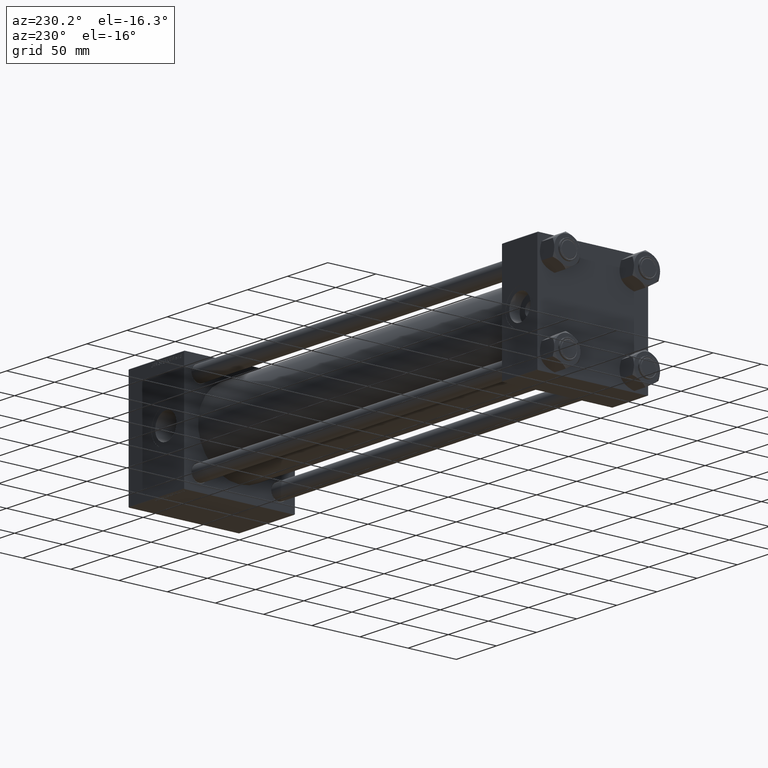
[diagram: clean part render]
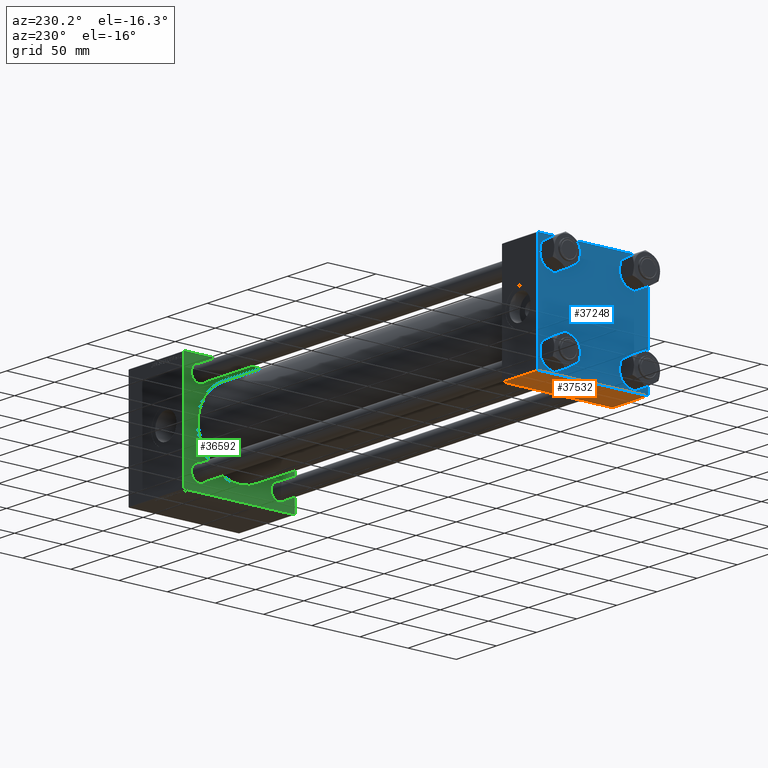
[diagram: same view with three faces highlighted in distinct colors, each labeled with its STEP entity id]
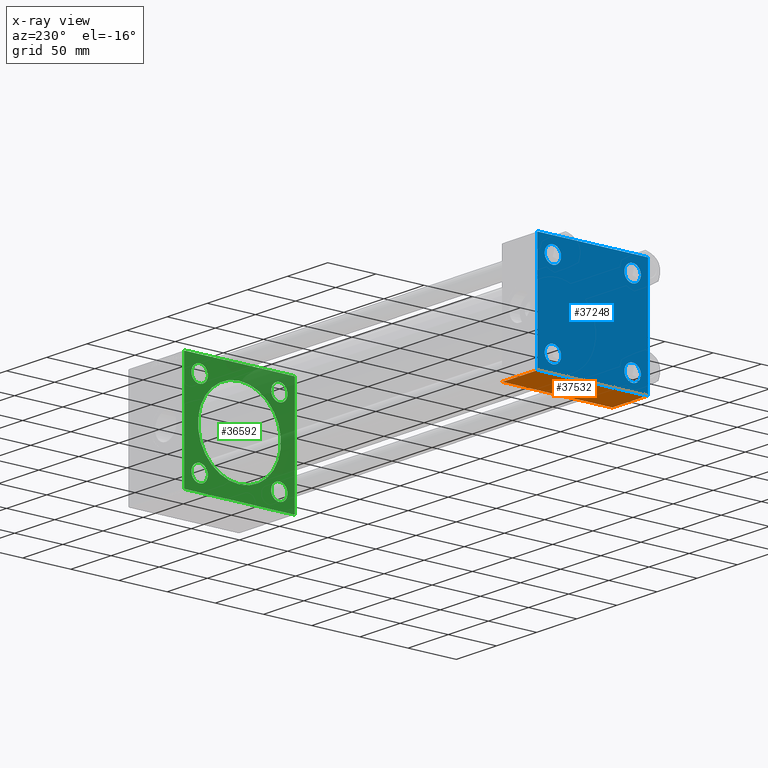
[diagram: x-ray of the same camera — body ghosted, the three highlighted faces saturated]
A machine part, auxiliary view with three faces highlighted in distinct colors.
The next image is the same camera in x-ray (body ghosted, the three faces saturated) — at least one of them is partly hidden behind the body in this view.
Their STEP definitions:

[orange] entity #37532 — the highlighted planar face has unit normal (0, 0, -1).
#2214 = EDGE_CURVE ( 'NONE', #27703, #52001, #8529, .T. ) ;
#4117 = DIRECTION ( 'NONE',  ( 0.000000000000000000, 1.000000000000000000, 1.206764157201257045E-16 ) ) ;
#6045 = ORIENTED_EDGE ( 'NONE', *, *, #33162, .F. ) ;
#7812 = CARTESIAN_POINT ( 'NONE',  ( 0.000000000000000000, 57.00000000000002132, -57.49999999999999289 ) ) ;
#8529 = LINE ( 'NONE', #28261, #21995 ) ;
#9624 = VECTOR ( 'NONE', #27954, 1000.000000000000000 ) ;
#11723 = EDGE_CURVE ( 'NONE', #30058, #49235, #39528, .T. ) ;
#15439 = CARTESIAN_POINT ( 'NONE',  ( 44.00000000000000000, 57.49999999999999289, -57.49999999999999289 ) ) ;
#16757 = PLANE ( 'NONE',  #43534 ) ;
#18352 = ORIENTED_EDGE ( 'NONE', *, *, #49988, .T. ) ;
#18907 = EDGE_LOOP ( 'NONE', ( #6045, #21496, #18352, #46232 ) ) ;
#19634 = LINE ( 'NONE', #15439, #46270 ) ;
#20943 = CARTESIAN_POINT ( 'NONE',  ( 44.00000000000000000, 57.49999999999999289, -57.49999999999999289 ) ) ;
#21496 = ORIENTED_EDGE ( 'NONE', *, *, #11723, .T. ) ;
#21995 = VECTOR ( 'NONE', #47000, 1000.000000000000000 ) ;
#25327 = CARTESIAN_POINT ( 'NONE',  ( 44.00000000000000000, 57.00000000000002132, -57.49999999999999289 ) ) ;
#27423 = LINE ( 'NONE', #47116, #29130 ) ;
#27703 = VERTEX_POINT ( 'NONE', #39192 ) ;
#27954 = DIRECTION ( 'NONE',  ( 1.000000000000000000, 0.000000000000000000, 0.000000000000000000 ) ) ;
#28261 = CARTESIAN_POINT ( 'NONE',  ( 0.000000000000000000, -57.00000000000000711, -57.50000000000000711 ) ) ;
#28862 = CARTESIAN_POINT ( 'NONE',  ( 0.000000000000000000, -57.00000000000000711, -57.50000000000000711 ) ) ;
#29130 = VECTOR ( 'NONE', #38717, 1000.000000000000000 ) ;
#30058 = VERTEX_POINT ( 'NONE', #7812 ) ;
#33162 = EDGE_CURVE ( 'NONE', #30058, #52001, #27423, .T. ) ;
#37532 = ADVANCED_FACE ( 'NONE', ( #51943 ), #16757, .T. ) ;
#38717 = DIRECTION ( 'NONE',  ( 0.000000000000000000, -1.000000000000000000, -1.206764157201257045E-16 ) ) ;
#39192 = CARTESIAN_POINT ( 'NONE',  ( 44.00000000000000000, -57.00000000000000711, -57.50000000000000711 ) ) ;
#39528 = LINE ( 'NONE', #47411, #9624 ) ;
#43534 = AXIS2_PLACEMENT_3D ( 'NONE', #20943, #48524, #4117 ) ;
#46232 = ORIENTED_EDGE ( 'NONE', *, *, #2214, .T. ) ;
#46270 = VECTOR ( 'NONE', #50643, 1000.000000000000000 ) ;
#47000 = DIRECTION ( 'NONE',  ( -1.000000000000000000, 0.000000000000000000, 0.000000000000000000 ) ) ;
#47116 = CARTESIAN_POINT ( 'NONE',  ( 0.000000000000000000, 57.49999999999999289, -57.49999999999999289 ) ) ;
#47411 = CARTESIAN_POINT ( 'NONE',  ( 44.00000000000000000, 57.00000000000002132, -57.49999999999999289 ) ) ;
#48524 = DIRECTION ( 'NONE',  ( 0.000000000000000000, 1.206764157201257045E-16, -1.000000000000000000 ) ) ;
#49235 = VERTEX_POINT ( 'NONE', #25327 ) ;
#49988 = EDGE_CURVE ( 'NONE', #49235, #27703, #19634, .T. ) ;
#50643 = DIRECTION ( 'NONE',  ( 0.000000000000000000, -1.000000000000000000, -1.206764157201257045E-16 ) ) ;
#51943 = FACE_OUTER_BOUND ( 'NONE', #18907, .T. ) ;
#52001 = VERTEX_POINT ( 'NONE', #28862 ) ;

[blue] entity #37248 — the highlighted planar face has unit normal (-1, 0, 0).
#236 = VERTEX_POINT ( 'NONE', #41688 ) ;
#993 = CARTESIAN_POINT ( 'NONE',  ( 0.000000000000000000, 57.49999999999999289, 57.50000000000000711 ) ) ;
#994 = EDGE_LOOP ( 'NONE', ( #35973, #45392 ) ) ;
#1159 = VERTEX_POINT ( 'NONE', #1476 ) ;
#1177 = VECTOR ( 'NONE', #32807, 1000.000000000000000 ) ;
#1389 = EDGE_LOOP ( 'NONE', ( #34189, #11705 ) ) ;
#1476 = CARTESIAN_POINT ( 'NONE',  ( 0.000000000000000000, -57.50000000000000711, -57.00000000000000711 ) ) ;
#1603 = FACE_BOUND ( 'NONE', #45903, .T. ) ;
#2089 = CARTESIAN_POINT ( 'NONE',  ( -0.000000000000000000, -57.25000000000081712, 57.24999999999922551 ) ) ;
#2900 = VECTOR ( 'NONE', #6947, 1000.000000000000000 ) ;
#2937 = CARTESIAN_POINT ( 'NONE',  ( 0.000000000000000000, -41.34999999999998721, 32.85000000000001563 ) ) ;
#3672 = DIRECTION ( 'NONE',  ( 1.000000000000000000, -0.000000000000000000, 0.000000000000000000 ) ) ;
#3928 = CARTESIAN_POINT ( 'NONE',  ( 0.000000000000000000, -41.34999999999998721, 41.35000000000000853 ) ) ;
#3949 = EDGE_LOOP ( 'NONE', ( #27500, #22620, #24702, #16811, #44395, #7179, #42875, #11808 ) ) ;
#4572 = LINE ( 'NONE', #28252, #19711 ) ;
#5027 = DIRECTION ( 'NONE',  ( -1.000000000000000000, 0.000000000000000000, -0.000000000000000000 ) ) ;
#5121 = EDGE_CURVE ( 'NONE', #29767, #28306, #11174, .T. ) ;
#5845 = LINE ( 'NONE', #41342, #17730 ) ;
#6281 = CIRCLE ( 'NONE', #12133, 8.499999999999992895 ) ;
#6902 = EDGE_CURVE ( 'NONE', #18930, #8273, #16791, .T. ) ;
#6947 = DIRECTION ( 'NONE',  ( 0.000000000000000000, -1.000000000000000000, -1.206764157201257045E-16 ) ) ;
#7179 = ORIENTED_EDGE ( 'NONE', *, *, #43991, .T. ) ;
#7522 = DIRECTION ( 'NONE',  ( 0.000000000000000000, 0.000000000000000000, 1.000000000000000000 ) ) ;
#7740 = LINE ( 'NONE', #39816, #31637 ) ;
#7812 = CARTESIAN_POINT ( 'NONE',  ( 0.000000000000000000, 57.00000000000002132, -57.49999999999999289 ) ) ;
#8273 = VERTEX_POINT ( 'NONE', #47980 ) ;
#8401 = VECTOR ( 'NONE', #19371, 1000.000000000000114 ) ;
#8984 = FACE_OUTER_BOUND ( 'NONE', #3949, .T. ) ;
#9242 = FACE_BOUND ( 'NONE', #18811, .T. ) ;
#10013 = EDGE_CURVE ( 'NONE', #236, #26561, #34737, .T. ) ;
#10648 = DIRECTION ( 'NONE',  ( 1.000000000000000000, -0.000000000000000000, 0.000000000000000000 ) ) ;
#11174 = CIRCLE ( 'NONE', #31306, 8.499999999999992895 ) ;
#11508 = EDGE_CURVE ( 'NONE', #19704, #16180, #35085, .T. ) ;
#11705 = ORIENTED_EDGE ( 'NONE', *, *, #21499, .T. ) ;
#11808 = ORIENTED_EDGE ( 'NONE', *, *, #45133, .T. ) ;
#12133 = AXIS2_PLACEMENT_3D ( 'NONE', #20285, #15833, #12412 ) ;
#12201 = DIRECTION ( 'NONE',  ( 1.000000000000000000, -0.000000000000000000, 0.000000000000000000 ) ) ;
#12206 = AXIS2_PLACEMENT_3D ( 'NONE', #32160, #12201, #44259 ) ;
#12412 = DIRECTION ( 'NONE',  ( 0.000000000000000000, 0.000000000000000000, 1.000000000000000000 ) ) ;
#12540 = CARTESIAN_POINT ( 'NONE',  ( 0.000000000000000000, 57.00000000000000711, 57.50000000000000711 ) ) ;
#12662 = FACE_BOUND ( 'NONE', #994, .T. ) ;
#13187 = DIRECTION ( 'NONE',  ( -0.000000000000000000, 0.000000000000000000, 1.000000000000000000 ) ) ;
#13741 = EDGE_CURVE ( 'NONE', #20063, #48618, #18935, .T. ) ;
#13753 = AXIS2_PLACEMENT_3D ( 'NONE', #41773, #37816, #21785 ) ;
#15674 = CARTESIAN_POINT ( 'NONE',  ( 0.000000000000000000, 41.34999999999999432, -41.35000000000000142 ) ) ;
#15833 = DIRECTION ( 'NONE',  ( 1.000000000000000000, -0.000000000000000000, 0.000000000000000000 ) ) ;
#15910 = CIRCLE ( 'NONE', #29348, 8.499999999999992895 ) ;
#16180 = VERTEX_POINT ( 'NONE', #20818 ) ;
#16665 = VERTEX_POINT ( 'NONE', #26918 ) ;
#16686 = DIRECTION ( 'NONE',  ( 0.000000000000000000, 0.000000000000000000, -1.000000000000000000 ) ) ;
#16791 = LINE ( 'NONE', #993, #1177 ) ;
#16811 = ORIENTED_EDGE ( 'NONE', *, *, #48405, .T. ) ;
#17220 = AXIS2_PLACEMENT_3D ( 'NONE', #50347, #50602, #26722 ) ;
#17232 = CARTESIAN_POINT ( 'NONE',  ( 0.000000000000000000, -41.34999999999998721, -41.35000000000000853 ) ) ;
#17368 = LINE ( 'NONE', #2089, #31042 ) ;
#17483 = DIRECTION ( 'NONE',  ( 1.000000000000000000, -0.000000000000000000, 0.000000000000000000 ) ) ;
#17730 = VECTOR ( 'NONE', #50239, 1000.000000000000114 ) ;
#18046 = CIRCLE ( 'NONE', #17220, 8.499999999999992895 ) ;
#18499 = DIRECTION ( 'NONE',  ( 0.000000000000000000, 0.000000000000000000, 1.000000000000000000 ) ) ;
#18811 = EDGE_LOOP ( 'NONE', ( #30387, #51021 ) ) ;
#18861 = CARTESIAN_POINT ( 'NONE',  ( 0.000000000000000000, 41.34999999999999432, -32.85000000000000853 ) ) ;
#18930 = VERTEX_POINT ( 'NONE', #29863 ) ;
#18935 = CIRCLE ( 'NONE', #12206, 8.499999999999992895 ) ;
#19371 = DIRECTION ( 'NONE',  ( 0.000000000000000000, 0.7071067811865573427, -0.7071067811865376918 ) ) ;
#19704 = VERTEX_POINT ( 'NONE', #12540 ) ;
#19711 = VECTOR ( 'NONE', #16686, 1000.000000000000000 ) ;
#20063 = VERTEX_POINT ( 'NONE', #41579 ) ;
#20285 = CARTESIAN_POINT ( 'NONE',  ( 0.000000000000000000, 41.34999999999999432, 41.35000000000000142 ) ) ;
#20818 = CARTESIAN_POINT ( 'NONE',  ( 0.000000000000000000, -57.00000000000003553, 57.49999999999999289 ) ) ;
#20833 = AXIS2_PLACEMENT_3D ( 'NONE', #41055, #5027, #13187 ) ;
#21499 = EDGE_CURVE ( 'NONE', #40945, #44377, #22961, .T. ) ;
#21785 = DIRECTION ( 'NONE',  ( 0.000000000000000000, 0.000000000000000000, 1.000000000000000000 ) ) ;
#22620 = ORIENTED_EDGE ( 'NONE', *, *, #32964, .T. ) ;
#22961 = CIRCLE ( 'NONE', #43907, 8.499999999999992895 ) ;
#23098 = CARTESIAN_POINT ( 'NONE',  ( 0.000000000000000000, -41.34999999999998721, -49.85000000000000853 ) ) ;
#23653 = CARTESIAN_POINT ( 'NONE',  ( 0.000000000000000000, 41.34999999999999432, 32.85000000000000853 ) ) ;
#23830 = CARTESIAN_POINT ( 'NONE',  ( 0.000000000000000000, 57.24999999999922551, 57.25000000000081712 ) ) ;
#24702 = ORIENTED_EDGE ( 'NONE', *, *, #33162, .T. ) ;
#25215 = EDGE_CURVE ( 'NONE', #28306, #29767, #18046, .T. ) ;
#26029 = DIRECTION ( 'NONE',  ( -0.000000000000000000, 0.7071067811865376918, 0.7071067811865573427 ) ) ;
#26257 = CIRCLE ( 'NONE', #43028, 8.499999999999992895 ) ;
#26561 = VERTEX_POINT ( 'NONE', #23653 ) ;
#26722 = DIRECTION ( 'NONE',  ( 0.000000000000000000, 0.000000000000000000, 1.000000000000000000 ) ) ;
#26916 = CARTESIAN_POINT ( 'NONE',  ( 0.000000000000000000, -41.34999999999998721, -32.85000000000001563 ) ) ;
#26918 = CARTESIAN_POINT ( 'NONE',  ( 0.000000000000000000, -57.50000000000000711, 57.00000000000000711 ) ) ;
#27423 = LINE ( 'NONE', #47116, #29130 ) ;
#27483 = EDGE_CURVE ( 'NONE', #26561, #236, #6281, .T. ) ;
#27500 = ORIENTED_EDGE ( 'NONE', *, *, #6902, .T. ) ;
#28252 = CARTESIAN_POINT ( 'NONE',  ( 0.000000000000000000, -57.50000000000000711, 57.49999999999999289 ) ) ;
#28306 = VERTEX_POINT ( 'NONE', #26916 ) ;
#28862 = CARTESIAN_POINT ( 'NONE',  ( 0.000000000000000000, -57.00000000000000711, -57.50000000000000711 ) ) ;
#28928 = EDGE_CURVE ( 'NONE', #16665, #1159, #4572, .T. ) ;
#28965 = PLANE ( 'NONE',  #20833 ) ;
#29130 = VECTOR ( 'NONE', #38717, 1000.000000000000000 ) ;
#29348 = AXIS2_PLACEMENT_3D ( 'NONE', #50835, #10648, #39025 ) ;
#29562 = DIRECTION ( 'NONE',  ( 0.000000000000000000, 0.000000000000000000, 1.000000000000000000 ) ) ;
#29767 = VERTEX_POINT ( 'NONE', #23098 ) ;
#29863 = CARTESIAN_POINT ( 'NONE',  ( 0.000000000000000000, 57.49999999999999289, 57.00000000000003553 ) ) ;
#30058 = VERTEX_POINT ( 'NONE', #7812 ) ;
#30387 = ORIENTED_EDGE ( 'NONE', *, *, #10013, .T. ) ;
#31042 = VECTOR ( 'NONE', #26029, 1000.000000000000114 ) ;
#31306 = AXIS2_PLACEMENT_3D ( 'NONE', #17232, #17483, #29562 ) ;
#31414 = DIRECTION ( 'NONE',  ( -0.000000000000000000, -0.7071067811865376918, -0.7071067811865573427 ) ) ;
#31637 = VECTOR ( 'NONE', #31414, 1000.000000000000114 ) ;
#32160 = CARTESIAN_POINT ( 'NONE',  ( 0.000000000000000000, -41.34999999999998721, 41.35000000000000853 ) ) ;
#32807 = DIRECTION ( 'NONE',  ( 0.000000000000000000, 0.000000000000000000, -1.000000000000000000 ) ) ;
#32964 = EDGE_CURVE ( 'NONE', #8273, #30058, #7740, .T. ) ;
#33162 = EDGE_CURVE ( 'NONE', #30058, #52001, #27423, .T. ) ;
#33968 = ORIENTED_EDGE ( 'NONE', *, *, #25215, .T. ) ;
#34189 = ORIENTED_EDGE ( 'NONE', *, *, #43485, .T. ) ;
#34737 = CIRCLE ( 'NONE', #13753, 8.499999999999992895 ) ;
#34778 = CARTESIAN_POINT ( 'NONE',  ( 0.000000000000000000, 41.34999999999999432, -49.85000000000000142 ) ) ;
#35085 = LINE ( 'NONE', #42963, #2900 ) ;
#35973 = ORIENTED_EDGE ( 'NONE', *, *, #13741, .T. ) ;
#37248 = ADVANCED_FACE ( 'NONE', ( #12662, #1603, #45236, #9242, #8984 ), #28965, .T. ) ;
#37816 = DIRECTION ( 'NONE',  ( 1.000000000000000000, -0.000000000000000000, 0.000000000000000000 ) ) ;
#38717 = DIRECTION ( 'NONE',  ( 0.000000000000000000, -1.000000000000000000, -1.206764157201257045E-16 ) ) ;
#39025 = DIRECTION ( 'NONE',  ( 0.000000000000000000, 0.000000000000000000, 1.000000000000000000 ) ) ;
#39816 = CARTESIAN_POINT ( 'NONE',  ( 0.000000000000000000, 57.25000000000081712, -57.24999999999922551 ) ) ;
#40641 = LINE ( 'NONE', #23830, #8401 ) ;
#40945 = VERTEX_POINT ( 'NONE', #34778 ) ;
#41055 = CARTESIAN_POINT ( 'NONE',  ( 0.000000000000000000, 0.000000000000000000, 0.000000000000000000 ) ) ;
#41342 = CARTESIAN_POINT ( 'NONE',  ( 0.000000000000000000, -57.25000000000000711, -57.25000000000000711 ) ) ;
#41579 = CARTESIAN_POINT ( 'NONE',  ( 0.000000000000000000, -41.34999999999998721, 49.85000000000000853 ) ) ;
#41688 = CARTESIAN_POINT ( 'NONE',  ( 0.000000000000000000, 41.34999999999999432, 49.85000000000000142 ) ) ;
#41773 = CARTESIAN_POINT ( 'NONE',  ( 0.000000000000000000, 41.34999999999999432, 41.35000000000000142 ) ) ;
#42875 = ORIENTED_EDGE ( 'NONE', *, *, #11508, .F. ) ;
#42963 = CARTESIAN_POINT ( 'NONE',  ( 0.000000000000000000, 57.49999999999999289, 57.50000000000000711 ) ) ;
#43028 = AXIS2_PLACEMENT_3D ( 'NONE', #3928, #3672, #18499 ) ;
#43357 = ORIENTED_EDGE ( 'NONE', *, *, #5121, .T. ) ;
#43485 = EDGE_CURVE ( 'NONE', #44377, #40945, #15910, .T. ) ;
#43907 = AXIS2_PLACEMENT_3D ( 'NONE', #15674, #51899, #7522 ) ;
#43991 = EDGE_CURVE ( 'NONE', #16665, #16180, #17368, .T. ) ;
#44259 = DIRECTION ( 'NONE',  ( 0.000000000000000000, 0.000000000000000000, 1.000000000000000000 ) ) ;
#44377 = VERTEX_POINT ( 'NONE', #18861 ) ;
#44395 = ORIENTED_EDGE ( 'NONE', *, *, #28928, .F. ) ;
#45133 = EDGE_CURVE ( 'NONE', #19704, #18930, #40641, .T. ) ;
#45236 = FACE_BOUND ( 'NONE', #1389, .T. ) ;
#45392 = ORIENTED_EDGE ( 'NONE', *, *, #47197, .T. ) ;
#45903 = EDGE_LOOP ( 'NONE', ( #33968, #43357 ) ) ;
#47116 = CARTESIAN_POINT ( 'NONE',  ( 0.000000000000000000, 57.49999999999999289, -57.49999999999999289 ) ) ;
#47197 = EDGE_CURVE ( 'NONE', #48618, #20063, #26257, .T. ) ;
#47980 = CARTESIAN_POINT ( 'NONE',  ( 0.000000000000000000, 57.49999999999999289, -57.00000000000000711 ) ) ;
#48405 = EDGE_CURVE ( 'NONE', #52001, #1159, #5845, .T. ) ;
#48618 = VERTEX_POINT ( 'NONE', #2937 ) ;
#50239 = DIRECTION ( 'NONE',  ( 0.000000000000000000, -0.7071067811865474617, 0.7071067811865474617 ) ) ;
#50347 = CARTESIAN_POINT ( 'NONE',  ( 0.000000000000000000, -41.34999999999998721, -41.35000000000000853 ) ) ;
#50602 = DIRECTION ( 'NONE',  ( 1.000000000000000000, -0.000000000000000000, 0.000000000000000000 ) ) ;
#50835 = CARTESIAN_POINT ( 'NONE',  ( 0.000000000000000000, 41.34999999999999432, -41.35000000000000142 ) ) ;
#51021 = ORIENTED_EDGE ( 'NONE', *, *, #27483, .T. ) ;
#51899 = DIRECTION ( 'NONE',  ( 1.000000000000000000, -0.000000000000000000, 0.000000000000000000 ) ) ;
#52001 = VERTEX_POINT ( 'NONE', #28862 ) ;

[green] entity #36592 — the highlighted planar face has unit normal (-1, 0, 0).
#667 = DIRECTION ( 'NONE',  ( 1.000000000000000000, -0.000000000000000000, 0.000000000000000000 ) ) ;
#1181 = DIRECTION ( 'NONE',  ( 1.000000000000000000, 0.000000000000000000, 0.000000000000000000 ) ) ;
#1276 = FACE_BOUND ( 'NONE', #17903, .T. ) ;
#2201 = EDGE_CURVE ( 'NONE', #48596, #27420, #6056, .T. ) ;
#2585 = CIRCLE ( 'NONE', #9311, 8.500000000000007105 ) ;
#3052 = EDGE_CURVE ( 'NONE', #3686, #19691, #32920, .T. ) ;
#3231 = CARTESIAN_POINT ( 'NONE',  ( 440.0000000000000000, 41.34999999999999432, -32.84999999999999432 ) ) ;
#3475 = DIRECTION ( 'NONE',  ( 0.000000000000000000, 0.000000000000000000, 1.000000000000000000 ) ) ;
#3686 = VERTEX_POINT ( 'NONE', #44929 ) ;
#4092 = CIRCLE ( 'NONE', #33497, 8.500000000000007105 ) ;
#4353 = CARTESIAN_POINT ( 'NONE',  ( 440.0000000000000000, -41.34999999999998721, -49.85000000000002274 ) ) ;
#4709 = EDGE_CURVE ( 'NONE', #27420, #48596, #43868, .T. ) ;
#5116 = CARTESIAN_POINT ( 'NONE',  ( 440.0000000000000000, -2.602085213965210642E-15, 0.000000000000000000 ) ) ;
#5132 = CARTESIAN_POINT ( 'NONE',  ( 440.0000000000000000, 57.50000000000000000, 57.50000000000000711 ) ) ;
#5177 = EDGE_CURVE ( 'NONE', #19691, #3686, #22073, .T. ) ;
#5459 = VERTEX_POINT ( 'NONE', #29185 ) ;
#6056 = CIRCLE ( 'NONE', #16954, 8.500000000000007105 ) ;
#6780 = EDGE_CURVE ( 'NONE', #42206, #15797, #28609, .T. ) ;
#6833 = VERTEX_POINT ( 'NONE', #49084 ) ;
#7365 = DIRECTION ( 'NONE',  ( 0.000000000000000000, 0.000000000000000000, 1.000000000000000000 ) ) ;
#7407 = VECTOR ( 'NONE', #41116, 1000.000000000000000 ) ;
#7825 = CARTESIAN_POINT ( 'NONE',  ( 440.0000000000000000, 41.34999999999999432, -41.35000000000000142 ) ) ;
#8350 = DIRECTION ( 'NONE',  ( 0.000000000000000000, 0.000000000000000000, 1.000000000000000000 ) ) ;
#8671 = AXIS2_PLACEMENT_3D ( 'NONE', #5116, #1181, #45325 ) ;
#8761 = VERTEX_POINT ( 'NONE', #14820 ) ;
#9311 = AXIS2_PLACEMENT_3D ( 'NONE', #38844, #43807, #19644 ) ;
#9405 = EDGE_CURVE ( 'NONE', #29317, #26922, #20454, .T. ) ;
#10244 = VERTEX_POINT ( 'NONE', #14837 ) ;
#11269 = CARTESIAN_POINT ( 'NONE',  ( 440.0000000000000000, 41.34999999999999432, -41.35000000000000142 ) ) ;
#11312 = CARTESIAN_POINT ( 'NONE',  ( 440.0000000000000000, -41.34999999999998721, -41.35000000000000853 ) ) ;
#11636 = CARTESIAN_POINT ( 'NONE',  ( 440.0000000000000000, -41.34999999999998721, 32.85000000000000142 ) ) ;
#11961 = DIRECTION ( 'NONE',  ( 0.000000000000000000, 0.000000000000000000, -1.000000000000000000 ) ) ;
#12981 = ORIENTED_EDGE ( 'NONE', *, *, #15678, .F. ) ;
#13062 = CARTESIAN_POINT ( 'NONE',  ( 440.0000000000000000, -57.49999999999999289, 57.49999999999999289 ) ) ;
#13138 = ORIENTED_EDGE ( 'NONE', *, *, #4709, .T. ) ;
#13366 = CARTESIAN_POINT ( 'NONE',  ( 440.0000000000000000, 0.000000000000000000, 0.000000000000000000 ) ) ;
#13720 = VECTOR ( 'NONE', #43408, 1000.000000000000000 ) ;
#14152 = FACE_BOUND ( 'NONE', #25842, .T. ) ;
#14663 = EDGE_LOOP ( 'NONE', ( #43311, #28669 ) ) ;
#14790 = CARTESIAN_POINT ( 'NONE',  ( 440.0000000000000000, 41.34999999999999432, -49.85000000000001563 ) ) ;
#14820 = CARTESIAN_POINT ( 'NONE',  ( 440.0000000000000000, 57.00000000000000000, 57.50000000000000711 ) ) ;
#14828 = DIRECTION ( 'NONE',  ( 1.000000000000000000, -0.000000000000000000, 0.000000000000000000 ) ) ;
#14837 = CARTESIAN_POINT ( 'NONE',  ( 440.0000000000000000, 57.50000000000000000, -56.99999999999996447 ) ) ;
#14950 = DIRECTION ( 'NONE',  ( 0.000000000000000000, 0.000000000000000000, 1.000000000000000000 ) ) ;
#15006 = CARTESIAN_POINT ( 'NONE',  ( 440.0000000000000000, 57.50000000000000000, 57.50000000000000711 ) ) ;
#15678 = EDGE_CURVE ( 'NONE', #29072, #15797, #43815, .T. ) ;
#15767 = DIRECTION ( 'NONE',  ( 0.000000000000000000, 0.000000000000000000, -1.000000000000000000 ) ) ;
#15797 = VERTEX_POINT ( 'NONE', #48203 ) ;
#15992 = DIRECTION ( 'NONE',  ( 0.000000000000000000, -0.7071067811865131558, 0.7071067811865818786 ) ) ;
#16954 = AXIS2_PLACEMENT_3D ( 'NONE', #11269, #31226, #14950 ) ;
#17903 = EDGE_LOOP ( 'NONE', ( #23645, #46059 ) ) ;
#18382 = AXIS2_PLACEMENT_3D ( 'NONE', #11312, #35485, #7365 ) ;
#18618 = EDGE_CURVE ( 'NONE', #41313, #32132, #35198, .T. ) ;
#19016 = ORIENTED_EDGE ( 'NONE', *, *, #26157, .T. ) ;
#19062 = ORIENTED_EDGE ( 'NONE', *, *, #6780, .T. ) ;
#19300 = ORIENTED_EDGE ( 'NONE', *, *, #46176, .T. ) ;
#19459 = EDGE_LOOP ( 'NONE', ( #50958, #19062, #12981, #19016, #20166, #47458, #34303, #38571 ) ) ;
#19509 = EDGE_CURVE ( 'NONE', #26922, #29317, #4092, .T. ) ;
#19644 = DIRECTION ( 'NONE',  ( 0.000000000000000000, 0.000000000000000000, 1.000000000000000000 ) ) ;
#19691 = VERTEX_POINT ( 'NONE', #44078 ) ;
#19939 = CARTESIAN_POINT ( 'NONE',  ( 440.0000000000000000, -57.25000000000275691, -57.24999999999719336 ) ) ;
#20022 = CARTESIAN_POINT ( 'NONE',  ( 440.0000000000000000, -41.34999999999998721, 41.35000000000000853 ) ) ;
#20166 = ORIENTED_EDGE ( 'NONE', *, *, #45176, .F. ) ;
#20454 = CIRCLE ( 'NONE', #48951, 8.500000000000007105 ) ;
#20620 = VECTOR ( 'NONE', #15767, 1000.000000000000000 ) ;
#20888 = DIRECTION ( 'NONE',  ( 1.000000000000000000, 0.000000000000000000, 0.000000000000000000 ) ) ;
#20940 = DIRECTION ( 'NONE',  ( 0.000000000000000000, 0.000000000000000000, -1.000000000000000000 ) ) ;
#21217 = AXIS2_PLACEMENT_3D ( 'NONE', #7825, #31746, #8350 ) ;
#21751 = EDGE_CURVE ( 'NONE', #5459, #42206, #27385, .T. ) ;
#22073 = CIRCLE ( 'NONE', #8671, 43.00000000000000000 ) ;
#23018 = LINE ( 'NONE', #38782, #41562 ) ;
#23293 = AXIS2_PLACEMENT_3D ( 'NONE', #29309, #667, #24076 ) ;
#23645 = ORIENTED_EDGE ( 'NONE', *, *, #3052, .T. ) ;
#24076 = DIRECTION ( 'NONE',  ( 0.000000000000000000, 0.000000000000000000, 1.000000000000000000 ) ) ;
#25055 = VERTEX_POINT ( 'NONE', #44599 ) ;
#25226 = VECTOR ( 'NONE', #37728, 1000.000000000000000 ) ;
#25654 = LINE ( 'NONE', #5132, #25226 ) ;
#25842 = EDGE_LOOP ( 'NONE', ( #13138, #26622 ) ) ;
#26157 = EDGE_CURVE ( 'NONE', #29072, #32401, #23018, .T. ) ;
#26552 = EDGE_CURVE ( 'NONE', #36803, #10244, #27851, .T. ) ;
#26622 = ORIENTED_EDGE ( 'NONE', *, *, #2201, .T. ) ;
#26922 = VERTEX_POINT ( 'NONE', #35939 ) ;
#27385 = LINE ( 'NONE', #46565, #13720 ) ;
#27420 = VERTEX_POINT ( 'NONE', #3231 ) ;
#27851 = LINE ( 'NONE', #15006, #20620 ) ;
#28609 = LINE ( 'NONE', #19939, #30566 ) ;
#28669 = ORIENTED_EDGE ( 'NONE', *, *, #46300, .T. ) ;
#29072 = VERTEX_POINT ( 'NONE', #49489 ) ;
#29175 = ORIENTED_EDGE ( 'NONE', *, *, #9405, .T. ) ;
#29185 = CARTESIAN_POINT ( 'NONE',  ( 440.0000000000000000, 56.99999999999994316, -57.49999999999996447 ) ) ;
#29309 = CARTESIAN_POINT ( 'NONE',  ( 440.0000000000000000, 41.34999999999999432, 41.35000000000000142 ) ) ;
#29317 = VERTEX_POINT ( 'NONE', #11636 ) ;
#29399 = CARTESIAN_POINT ( 'NONE',  ( 440.0000000000000000, 41.34999999999999432, 41.35000000000000142 ) ) ;
#29400 = DIRECTION ( 'NONE',  ( -1.000000000000000000, 0.000000000000000000, -0.000000000000000000 ) ) ;
#30180 = DIRECTION ( 'NONE',  ( 1.000000000000000000, -0.000000000000000000, 0.000000000000000000 ) ) ;
#30566 = VECTOR ( 'NONE', #15992, 1000.000000000000000 ) ;
#30901 = DIRECTION ( 'NONE',  ( -0.000000000000000000, 0.7071067811865916486, 0.7071067811865033859 ) ) ;
#30906 = AXIS2_PLACEMENT_3D ( 'NONE', #13366, #29400, #45414 ) ;
#31104 = DIRECTION ( 'NONE',  ( 0.000000000000000000, 0.000000000000000000, 1.000000000000000000 ) ) ;
#31226 = DIRECTION ( 'NONE',  ( 1.000000000000000000, -0.000000000000000000, 0.000000000000000000 ) ) ;
#31746 = DIRECTION ( 'NONE',  ( 1.000000000000000000, -0.000000000000000000, 0.000000000000000000 ) ) ;
#32132 = VERTEX_POINT ( 'NONE', #4353 ) ;
#32401 = VERTEX_POINT ( 'NONE', #36386 ) ;
#32920 = CIRCLE ( 'NONE', #34593, 43.00000000000000000 ) ;
#32994 = CARTESIAN_POINT ( 'NONE',  ( 440.0000000000000000, -56.99999999999998579, -57.49999999999997868 ) ) ;
#33348 = FACE_OUTER_BOUND ( 'NONE', #19459, .T. ) ;
#33497 = AXIS2_PLACEMENT_3D ( 'NONE', #20022, #43944, #3475 ) ;
#34303 = ORIENTED_EDGE ( 'NONE', *, *, #26552, .T. ) ;
#34593 = AXIS2_PLACEMENT_3D ( 'NONE', #47945, #20888, #11961 ) ;
#35057 = EDGE_CURVE ( 'NONE', #25055, #6833, #45921, .T. ) ;
#35198 = CIRCLE ( 'NONE', #18382, 8.500000000000007105 ) ;
#35485 = DIRECTION ( 'NONE',  ( 1.000000000000000000, -0.000000000000000000, 0.000000000000000000 ) ) ;
#35939 = CARTESIAN_POINT ( 'NONE',  ( 440.0000000000000000, -41.34999999999998721, 49.85000000000002274 ) ) ;
#36170 = AXIS2_PLACEMENT_3D ( 'NONE', #29399, #30180, #46461 ) ;
#36386 = CARTESIAN_POINT ( 'NONE',  ( 440.0000000000000000, -56.99999999999993605, 57.49999999999999289 ) ) ;
#36452 = CARTESIAN_POINT ( 'NONE',  ( 440.0000000000000000, 57.24999999999679545, -57.25000000000315481 ) ) ;
#36592 = ADVANCED_FACE ( 'NONE', ( #38054, #41234, #14152, #37295, #1276, #33348 ), #49352, .T. ) ;
#36803 = VERTEX_POINT ( 'NONE', #45357 ) ;
#37060 = EDGE_CURVE ( 'NONE', #8761, #36803, #48970, .T. ) ;
#37295 = FACE_BOUND ( 'NONE', #14663, .T. ) ;
#37728 = DIRECTION ( 'NONE',  ( 0.000000000000000000, -1.000000000000000000, -1.206764157201257291E-16 ) ) ;
#38054 = FACE_BOUND ( 'NONE', #40257, .T. ) ;
#38571 = ORIENTED_EDGE ( 'NONE', *, *, #41810, .T. ) ;
#38782 = CARTESIAN_POINT ( 'NONE',  ( 440.0000000000000000, -57.24999999999640465, 57.25000000000355271 ) ) ;
#38844 = CARTESIAN_POINT ( 'NONE',  ( 440.0000000000000000, -41.34999999999998721, -41.35000000000000853 ) ) ;
#39155 = VECTOR ( 'NONE', #20940, 1000.000000000000000 ) ;
#40257 = EDGE_LOOP ( 'NONE', ( #50058, #29175 ) ) ;
#40653 = DIRECTION ( 'NONE',  ( -0.000000000000000000, -0.7071067811865867636, -0.7071067811865081598 ) ) ;
#41116 = DIRECTION ( 'NONE',  ( 0.000000000000000000, 0.7071067811865081598, -0.7071067811865867636 ) ) ;
#41234 = FACE_BOUND ( 'NONE', #50985, .T. ) ;
#41313 = VERTEX_POINT ( 'NONE', #43113 ) ;
#41370 = CARTESIAN_POINT ( 'NONE',  ( 440.0000000000000000, 57.25000000000316192, 57.24999999999680256 ) ) ;
#41562 = VECTOR ( 'NONE', #30901, 1000.000000000000000 ) ;
#41810 = EDGE_CURVE ( 'NONE', #10244, #5459, #48510, .T. ) ;
#42033 = CIRCLE ( 'NONE', #36170, 8.500000000000007105 ) ;
#42206 = VERTEX_POINT ( 'NONE', #32994 ) ;
#43113 = CARTESIAN_POINT ( 'NONE',  ( 440.0000000000000000, -41.34999999999998721, -32.85000000000000142 ) ) ;
#43311 = ORIENTED_EDGE ( 'NONE', *, *, #18618, .T. ) ;
#43408 = DIRECTION ( 'NONE',  ( 0.000000000000000000, -1.000000000000000000, -1.206764157201257291E-16 ) ) ;
#43701 = CARTESIAN_POINT ( 'NONE',  ( 440.0000000000000000, -41.34999999999998721, 41.35000000000000853 ) ) ;
#43807 = DIRECTION ( 'NONE',  ( 1.000000000000000000, -0.000000000000000000, 0.000000000000000000 ) ) ;
#43815 = LINE ( 'NONE', #13062, #39155 ) ;
#43868 = CIRCLE ( 'NONE', #21217, 8.500000000000007105 ) ;
#43944 = DIRECTION ( 'NONE',  ( 1.000000000000000000, -0.000000000000000000, 0.000000000000000000 ) ) ;
#44078 = CARTESIAN_POINT ( 'NONE',  ( 440.0000000000000000, 2.663896022368408223E-15, -43.00000000000000000 ) ) ;
#44599 = CARTESIAN_POINT ( 'NONE',  ( 440.0000000000000000, 41.34999999999999432, 49.85000000000001563 ) ) ;
#44929 = CARTESIAN_POINT ( 'NONE',  ( 440.0000000000000000, -2.602085213965210642E-15, 43.00000000000000000 ) ) ;
#45176 = EDGE_CURVE ( 'NONE', #8761, #32401, #25654, .T. ) ;
#45325 = DIRECTION ( 'NONE',  ( 0.000000000000000000, 0.000000000000000000, -1.000000000000000000 ) ) ;
#45357 = CARTESIAN_POINT ( 'NONE',  ( 440.0000000000000000, 57.50000000000000000, 56.99999999999995026 ) ) ;
#45414 = DIRECTION ( 'NONE',  ( -0.000000000000000000, 0.000000000000000000, 1.000000000000000000 ) ) ;
#45921 = CIRCLE ( 'NONE', #23293, 8.500000000000007105 ) ;
#46059 = ORIENTED_EDGE ( 'NONE', *, *, #5177, .T. ) ;
#46176 = EDGE_CURVE ( 'NONE', #6833, #25055, #42033, .T. ) ;
#46300 = EDGE_CURVE ( 'NONE', #32132, #41313, #2585, .T. ) ;
#46461 = DIRECTION ( 'NONE',  ( 0.000000000000000000, 0.000000000000000000, 1.000000000000000000 ) ) ;
#46565 = CARTESIAN_POINT ( 'NONE',  ( 440.0000000000000000, 57.50000000000000000, -57.49999999999996447 ) ) ;
#47458 = ORIENTED_EDGE ( 'NONE', *, *, #37060, .T. ) ;
#47945 = CARTESIAN_POINT ( 'NONE',  ( 440.0000000000000000, -2.602085213965210642E-15, 0.000000000000000000 ) ) ;
#48203 = CARTESIAN_POINT ( 'NONE',  ( 440.0000000000000000, -57.49999999999999289, -56.99999999999992895 ) ) ;
#48510 = LINE ( 'NONE', #36452, #51942 ) ;
#48596 = VERTEX_POINT ( 'NONE', #14790 ) ;
#48875 = ORIENTED_EDGE ( 'NONE', *, *, #35057, .T. ) ;
#48951 = AXIS2_PLACEMENT_3D ( 'NONE', #43701, #14828, #31104 ) ;
#48970 = LINE ( 'NONE', #41370, #7407 ) ;
#49084 = CARTESIAN_POINT ( 'NONE',  ( 440.0000000000000000, 41.34999999999999432, 32.84999999999999432 ) ) ;
#49352 = PLANE ( 'NONE',  #30906 ) ;
#49489 = CARTESIAN_POINT ( 'NONE',  ( 440.0000000000000000, -57.49999999999999289, 56.99999999999999289 ) ) ;
#50058 = ORIENTED_EDGE ( 'NONE', *, *, #19509, .T. ) ;
#50958 = ORIENTED_EDGE ( 'NONE', *, *, #21751, .T. ) ;
#50985 = EDGE_LOOP ( 'NONE', ( #48875, #19300 ) ) ;
#51942 = VECTOR ( 'NONE', #40653, 1000.000000000000000 ) ;